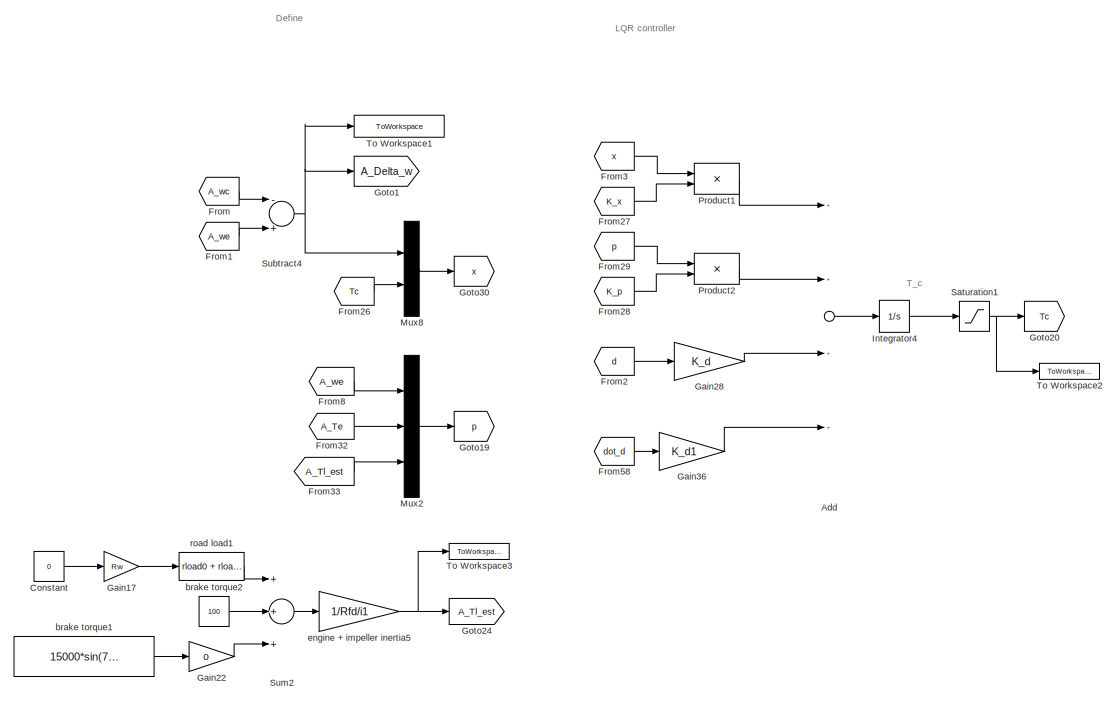
[diagram: root canvas - part 1/5, top left region]
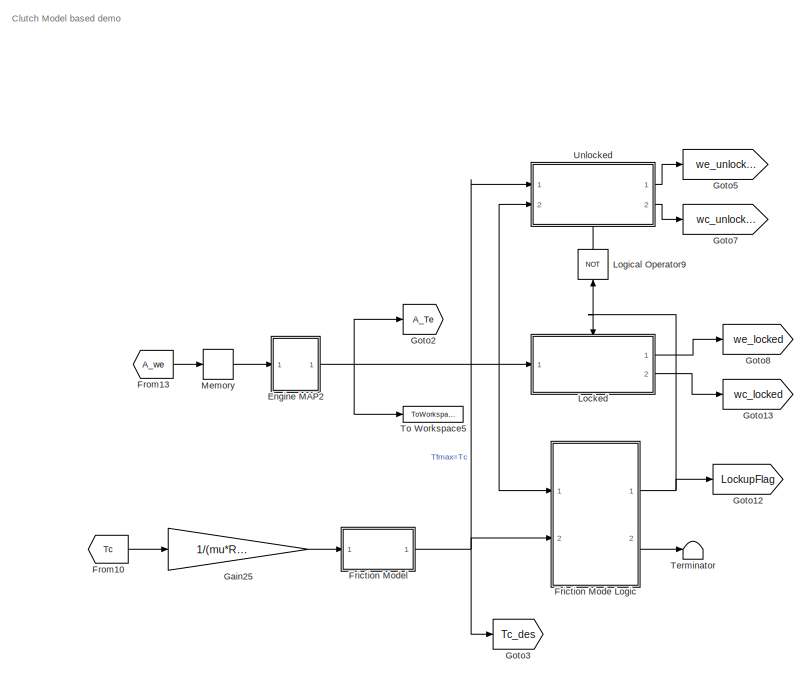
[diagram: root canvas - part 2/5, top center region]
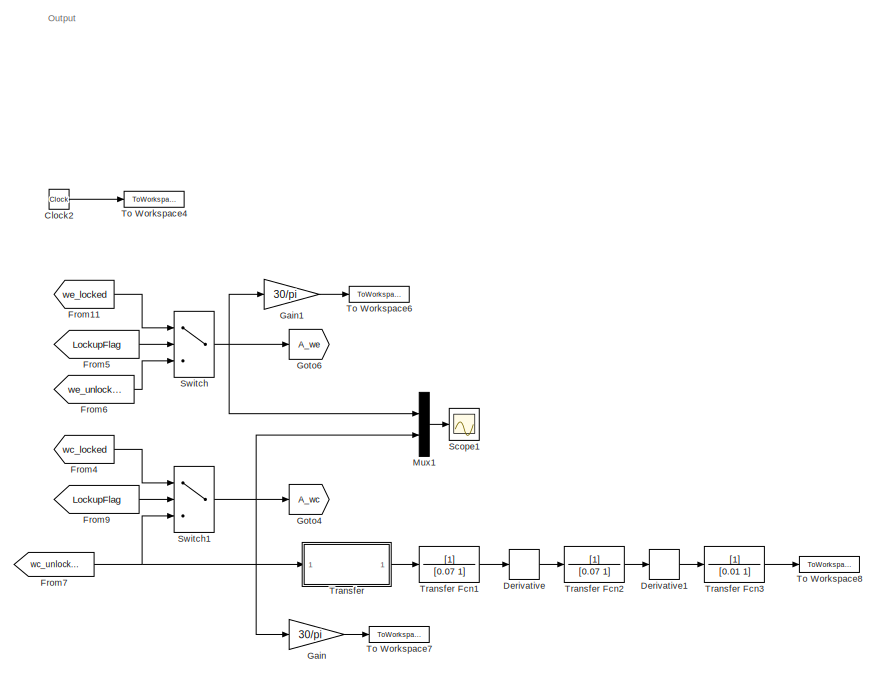
[diagram: root canvas - part 3/5, top right region]
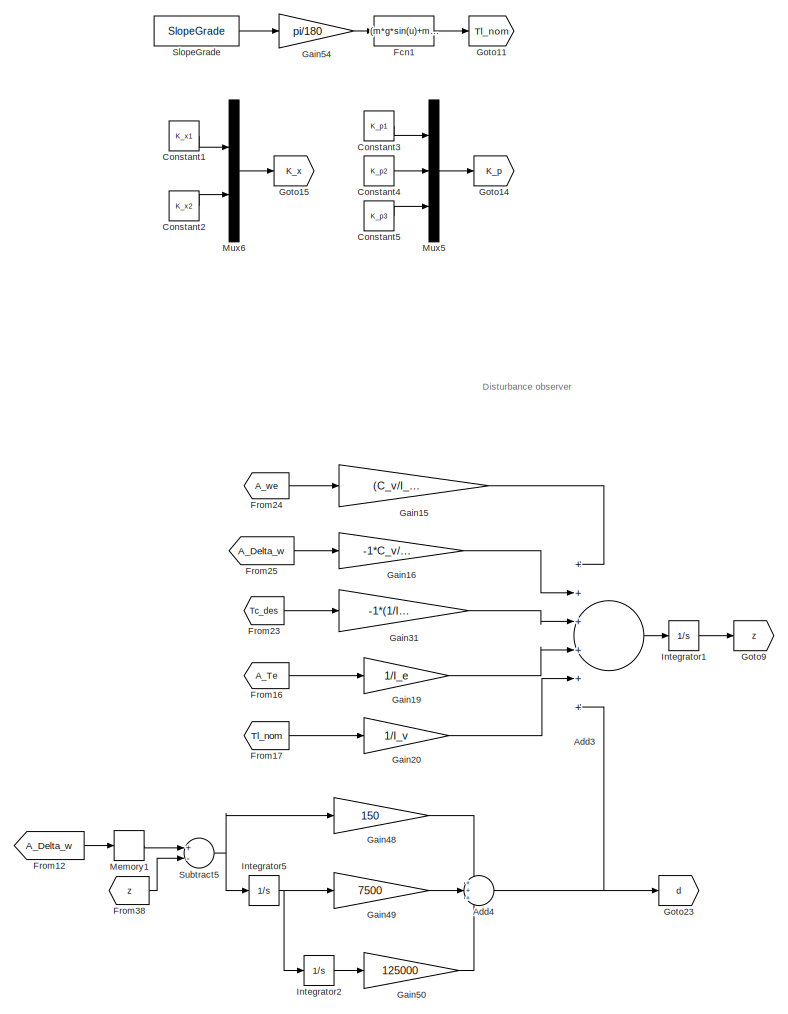
[diagram: root canvas - part 4/5, bottom left region]
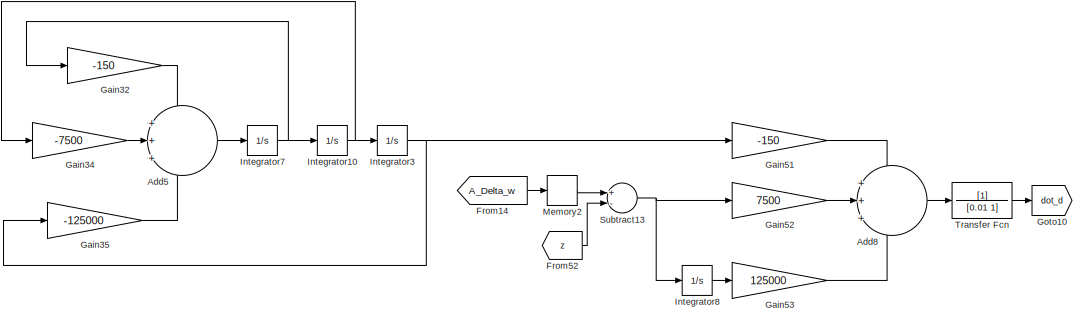
[diagram: root canvas - part 5/5, bottom center region]
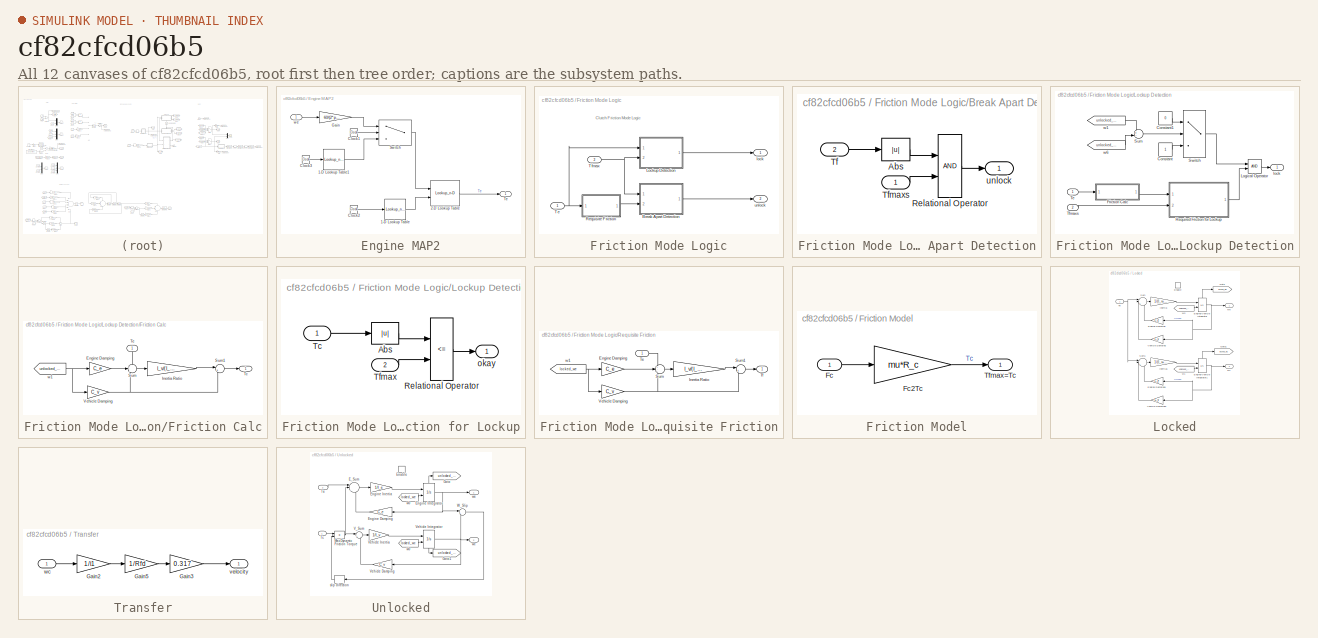
[diagram: thumbnail index - all 12 canvases of the model, root first then tree order]
MODEL slx_cf82cfcd06b5
KIND model
CONFIG AbsTol = auto
CONFIG FixedStep = auto
CONFIG MaxStep = auto
CONFIG MinStep = auto
CONFIG PreLoadFcn = %% parameters of model\nSlopeGrade = 0   % SlopeGrade deg\n\n%%%%%%%%%%%%%%%%%%%%%%%%%%%%%%%%%%%%%%%%%%%%%%%%%%%%%%%%%%%%%%%%%%% Engine\nI_e=0.16;   % moment of crank [kgm2]\nC_e=0.06;   % damping coefficient at the engine [Nm/(rad/s)]\n\n%%%%%%%%%%%%%%%%%%%%%%%%%%%%%%%%%%%%%%%%%%%%%%%%%%%%%%%%%%%%%%%%%%% Clutch\nmu = 0.4;\nD = 0.22;       % diameter on clutch friction plate \nR_c = D/2;\n\n%%%%%%%%%%%%%%%%%%...<+662ch>
CONFIG RelTol = 1e-3
CONFIG SampleTimeConstraint = Unconstrained
CONFIG Solver = ode45
CONFIG SolverMode = Auto
CONFIG SolverName = ode45
CONFIG StartTime = 0.0
CONFIG StopTime = 3
BLOCK [Sum] Add
  InputSameDT = off
  Inputs = ++++
  OutDataTypeStr = Inherit: Inherit via internal rule
  Ports = [4, 1]
  SaturateOnIntegerOverflow = off
BLOCK [Sum] Add3
  IconShape = round
  InputSameDT = off
  Inputs = ++++++
  OutDataTypeStr = Inherit: Inherit via internal rule
  Ports = [6, 1]
  SaturateOnIntegerOverflow = off
BLOCK [Sum] Add4
  IconShape = round
  InputSameDT = off
  Inputs = +++
  OutDataTypeStr = Inherit: Inherit via internal rule
  Ports = [3, 1]
  SaturateOnIntegerOverflow = off
BLOCK [Sum] Add5
  IconShape = round
  InputSameDT = off
  Inputs = +++
  OutDataTypeStr = Inherit: Inherit via internal rule
  Ports = [3, 1]
  SaturateOnIntegerOverflow = off
BLOCK [Sum] Add8
  IconShape = round
  InputSameDT = off
  Inputs = +++
  OutDataTypeStr = Inherit: Inherit via internal rule
  Ports = [3, 1]
  SaturateOnIntegerOverflow = off
BLOCK [Clock] Clock2
BLOCK [Constant] Constant
  Value = 0
BLOCK [Constant] Constant1
  Value = K_x1
BLOCK [Constant] Constant2
  Value = K_x2
BLOCK [Constant] Constant3
  Value = K_p1
BLOCK [Constant] Constant4
  Value = K_p2
BLOCK [Constant] Constant5
  Value = K_p3
BLOCK [Derivative] Derivative
BLOCK [Derivative] Derivative1
BLOCK [SubSystem] Engine MAP2
  Ports = [1, 1]
  RequestExecContextInheritance = off
  Variant = off
BLOCK [Lookup_n-D] Engine MAP2/1-D Lookup Table
  BreakpointsForDimension1 = [0 10]
  InternalRulePriority = Speed
  NumberOfTableDimensions = 1
  Ports = [1, 1]
  RndMeth = Simplest
  Table = [0.2 0.5]
BLOCK [Lookup_n-D] Engine MAP2/1-D Lookup Table1
  BreakpointsForDimension1 = [0 0.001 ]
  InternalRulePriority = Speed
  NumberOfTableDimensions = 1
  Ports = [1, 1]
  RndMeth = Simplest
  Table = [800 800 ]
BLOCK [Lookup_n-D] Engine MAP2/2-D Lookup Table
  BreakpointsForDimension1 = [0;500;1000;2000;3000;4000;5000;6000;6500]
  BreakpointsForDimension2 = [0 0.2 0.3 0.4 0.6 0.8 1]
  InternalRulePriority = Speed
  Ports = [2, 1]
  RndMeth = Simplest
  Table = [0 0 0 0 0	0 0;0 85 95 102 103 107.5 110;0 80 100 110 112.5 113.5 115;0 55 105 120 125 127.5 130;0 35	90 118.5 126 135 137.5;0 24.5 80 122.5 137.5 150 155;0 26 72.5 110 127.5 137.5 140;0 11.5 50 87.5 112.5 125 127.5;0 0 37.5 77.5 110 117.5 117.5]
BLOCK [Clock] Engine MAP2/Clock1
BLOCK [Clock] Engine MAP2/Clock2
BLOCK [Clock] Engine MAP2/Clock3
BLOCK [Gain] Engine MAP2/Gain
  Gain = 60/(2*pi)
  OutDataTypeStr = Inherit: Inherit via internal rule
  ParamDataTypeStr = Inherit: Inherit via internal rule
  SaturateOnIntegerOverflow = off
BLOCK [Switch] Engine MAP2/Switch
  Criteria = u2 > Threshold
  InputSameDT = off
  SaturateOnIntegerOverflow = off
  Threshold = 0.001
BLOCK [Outport] Engine MAP2/Te
  IconDisplay = Port number
BLOCK [Inport] Engine MAP2/we 
  IconDisplay = Port number
BLOCK [Fcn] Fcn1
  Expr = (m*g*sin(u)+mu_r*m*g*cos(u))*Rw/(Rfd*i1)
BLOCK [SubSystem] Friction Mode Logic
  Ports = [2, 2]
  RequestExecContextInheritance = off
  Variant = off
BLOCK [SubSystem] Friction Mode Logic/Break Apart Detection
  Ports = [2, 1]
  RequestExecContextInheritance = off
  Variant = off
BLOCK [Abs] Friction Mode Logic/Break Apart Detection/Abs
BLOCK [RelationalOperator] Friction Mode Logic/Break Apart Detection/Relational Operator
  OutDataTypeStr = boolean
  Ports = [2, 1]
BLOCK [Inport] Friction Mode Logic/Break Apart Detection/Tf
  IconDisplay = Port number
  Port = 2
BLOCK [Inport] Friction Mode Logic/Break Apart Detection/Tfmaxs
  IconDisplay = Port number
BLOCK [Outport] Friction Mode Logic/Break Apart Detection/unlock
  IconDisplay = Port number
  InitialOutput = 0
BLOCK [SubSystem] Friction Mode Logic/Lockup Detection
  Ports = [2, 1]
  RequestExecContextInheritance = off
  Variant = off
BLOCK [Constant] Friction Mode Logic/Lockup Detection/Constant
BLOCK [Constant] Friction Mode Logic/Lockup Detection/Constant1
  Value = 0
BLOCK [SubSystem] Friction Mode Logic/Lockup Detection/Friction Calc
  Ports = [1, 1]
  RequestExecContextInheritance = off
  Variant = off
BLOCK [Gain] Friction Mode Logic/Lockup Detection/Friction Calc/Engine Damping
  Gain = C_e
BLOCK [Gain] Friction Mode Logic/Lockup Detection/Friction Calc/Inertia Ratio
  Gain = I_v/(I_v+I_e)
BLOCK [Sum] Friction Mode Logic/Lockup Detection/Friction Calc/Sum
  IconShape = round
  Inputs = +--
  Ports = [3, 1]
BLOCK [Sum] Friction Mode Logic/Lockup Detection/Friction Calc/Sum1
  IconShape = round
  Inputs = |++
  Ports = [2, 1]
BLOCK [Outport] Friction Mode Logic/Lockup Detection/Friction Calc/Tc
  IconDisplay = Port number
  InitialOutput = 0
BLOCK [Inport] Friction Mode Logic/Lockup Detection/Friction Calc/Te
  IconDisplay = Port number
BLOCK [Gain] Friction Mode Logic/Lockup Detection/Friction Calc/Vehicle Damping
  Gain = C_v
BLOCK [From] Friction Mode Logic/Lockup Detection/Friction Calc/w1
  GotoTag = unlocked_we
  TagVisibility = global
BLOCK [Logic] Friction Mode Logic/Lockup Detection/Logical Operator
  AllPortsSameDT = off
  OutDataTypeStr = boolean
  Ports = [2, 1]
BLOCK [SubSystem] Friction Mode Logic/Lockup Detection/Required Friction for Lockup
  Ports = [2, 1]
  RequestExecContextInheritance = off
  Variant = off
BLOCK [Abs] Friction Mode Logic/Lockup Detection/Required Friction for Lockup/Abs
BLOCK [RelationalOperator] Friction Mode Logic/Lockup Detection/Required Friction for Lockup/Relational Operator
  Operator = <=
  OutDataTypeStr = boolean
  Ports = [2, 1]
BLOCK [Inport] Friction Mode Logic/Lockup Detection/Required Friction for Lockup/Tc
  IconDisplay = Port number
BLOCK [Inport] Friction Mode Logic/Lockup Detection/Required Friction for Lockup/Tfmax
  IconDisplay = Port number
  Port = 2
BLOCK [Outport] Friction Mode Logic/Lockup Detection/Required Friction for Lockup/okay
  IconDisplay = Port number
  InitialOutput = 0
BLOCK [Sum] Friction Mode Logic/Lockup Detection/Sum
  IconShape = round
  Inputs = +-
  Ports = [2, 1]
BLOCK [Switch] Friction Mode Logic/Lockup Detection/Switch
  Criteria = u2 ~= 0
  InputSameDT = off
  SaturateOnIntegerOverflow = off
BLOCK [Inport] Friction Mode Logic/Lockup Detection/Te
  IconDisplay = Port number
BLOCK [Inport] Friction Mode Logic/Lockup Detection/Tfmaxs
  IconDisplay = Port number
  Port = 2
BLOCK [Outport] Friction Mode Logic/Lockup Detection/lock
  IconDisplay = Port number
  InitialOutput = 0
BLOCK [From] Friction Mode Logic/Lockup Detection/w1
  GotoTag = unlocked_we
  TagVisibility = global
BLOCK [From] Friction Mode Logic/Lockup Detection/w6
  GotoTag = unlocked_wc
  TagVisibility = global
BLOCK [SubSystem] Friction Mode Logic/Requisite Friction
  Ports = [1, 1]
  RequestExecContextInheritance = off
  Variant = off
BLOCK [Gain] Friction Mode Logic/Requisite Friction/Engine Damping
  Gain = C_e
BLOCK [Gain] Friction Mode Logic/Requisite Friction/Inertia Ratio
  Gain = I_v/(I_v+I_e)
BLOCK [Sum] Friction Mode Logic/Requisite Friction/Sum
  IconShape = round
  Inputs = +--
  Ports = [3, 1]
BLOCK [Sum] Friction Mode Logic/Requisite Friction/Sum1
  IconShape = round
  Inputs = |++
  Ports = [2, 1]
BLOCK [Inport] Friction Mode Logic/Requisite Friction/Te
  IconDisplay = Port number
BLOCK [Outport] Friction Mode Logic/Requisite Friction/Tf
  IconDisplay = Port number
  InitialOutput = 0
BLOCK [Gain] Friction Mode Logic/Requisite Friction/Vehicle Damping
  Gain = C_v
BLOCK [From] Friction Mode Logic/Requisite Friction/w1
  GotoTag = locked_we
  TagVisibility = global
BLOCK [Inport] Friction Mode Logic/Te
  IconDisplay = Port number
BLOCK [Inport] Friction Mode Logic/Tfmax
  IconDisplay = Port number
  Port = 2
BLOCK [Outport] Friction Mode Logic/lock
  IconDisplay = Port number
  InitialOutput = 0
BLOCK [Outport] Friction Mode Logic/unlock
  IconDisplay = Port number
  InitialOutput = 0
  Port = 2
BLOCK [SubSystem] Friction Model
  Ports = [1, 1]
  RequestExecContextInheritance = off
  Variant = off
BLOCK [Inport] Friction Model/Fc
  IconDisplay = Port number
BLOCK [Gain] Friction Model/Fc2Tc
  Gain = mu*R_c
  OutDataTypeStr = Inherit: Inherit via internal rule
  ParamDataTypeStr = Inherit: Inherit via internal rule
  SaturateOnIntegerOverflow = off
BLOCK [Outport] Friction Model/Tfmax=Tc
  IconDisplay = Port number
BLOCK [From] From
  GotoTag = A_wc
BLOCK [From] From1
  GotoTag = A_we
BLOCK [From] From10
  GotoTag = Tc
BLOCK [From] From11
  GotoTag = we_locked
BLOCK [From] From12
  GotoTag = A_Delta_w
BLOCK [From] From13
  GotoTag = A_we
BLOCK [From] From14
  GotoTag = A_Delta_w
BLOCK [From] From16
  CloseFcn = tagdialog Close
  GotoTag = A_Te
BLOCK [From] From17
  GotoTag = Tl_nom
BLOCK [From] From2
  GotoTag = d
BLOCK [From] From23
  GotoTag = Tc_des
BLOCK [From] From24
  CloseFcn = tagdialog Close
  GotoTag = A_we
BLOCK [From] From25
  GotoTag = A_Delta_w
BLOCK [From] From26
  GotoTag = Tc
BLOCK [From] From27
  GotoTag = K_x
BLOCK [From] From28
  GotoTag = K_p
BLOCK [From] From29
  GotoTag = p
BLOCK [From] From3
  GotoTag = x
BLOCK [From] From32
  CloseFcn = tagdialog Close
  GotoTag = A_Te
BLOCK [From] From33
  GotoTag = A_Tl_est
BLOCK [From] From38
  GotoTag = z
BLOCK [From] From4
  GotoTag = wc_locked
BLOCK [From] From5
  GotoTag = LockupFlag
BLOCK [From] From52
  GotoTag = z
BLOCK [From] From58
  GotoTag = dot_d
BLOCK [From] From6
  GotoTag = we_unlocked
BLOCK [From] From7
  GotoTag = wc_unlocked
BLOCK [From] From8
  GotoTag = A_we
BLOCK [From] From9
  GotoTag = LockupFlag
BLOCK [Gain] Gain
  Gain = 30/pi
  OutDataTypeStr = Inherit: Inherit via internal rule
  ParamDataTypeStr = Inherit: Inherit via internal rule
  SaturateOnIntegerOverflow = off
BLOCK [Gain] Gain1
  Gain = 30/pi
  OutDataTypeStr = Inherit: Inherit via internal rule
  ParamDataTypeStr = Inherit: Inherit via internal rule
  SaturateOnIntegerOverflow = off
BLOCK [Gain] Gain15
  Gain = (C_v/I_v-C_e/I_e)
  Multiplication = Matrix(K*u)
  OutDataTypeStr = Inherit: Inherit via internal rule
  ParamDataTypeStr = Inherit: Inherit via internal rule
  SaturateOnIntegerOverflow = off
BLOCK [Gain] Gain16
  Gain = -1*C_v/I_v
  Multiplication = Matrix(K*u)
  OutDataTypeStr = Inherit: Inherit via internal rule
  ParamDataTypeStr = Inherit: Inherit via internal rule
  SaturateOnIntegerOverflow = off
BLOCK [Gain] Gain17
  Gain = Rw
  OutDataTypeStr = Inherit: Inherit via internal rule
  ParamDataTypeStr = Inherit: Inherit via internal rule
  SaturateOnIntegerOverflow = off
BLOCK [Gain] Gain19
  Gain = 1/I_e
  Multiplication = Matrix(K*u)
  OutDataTypeStr = Inherit: Inherit via internal rule
  ParamDataTypeStr = Inherit: Inherit via internal rule
  SaturateOnIntegerOverflow = off
BLOCK [Gain] Gain20
  Gain = 1/I_v
  Multiplication = Matrix(K*u)
  OutDataTypeStr = Inherit: Inherit via internal rule
  ParamDataTypeStr = Inherit: Inherit via internal rule
  SaturateOnIntegerOverflow = off
BLOCK [Gain] Gain22
  Gain = 0
  OutDataTypeStr = Inherit: Inherit via internal rule
  ParamDataTypeStr = Inherit: Inherit via internal rule
  SaturateOnIntegerOverflow = off
BLOCK [Gain] Gain25
  Gain = 1/(mu*R_c)
  Multiplication = Matrix(K*u)
  OutDataTypeStr = Inherit: Inherit via internal rule
  ParamDataTypeStr = Inherit: Inherit via internal rule
  SaturateOnIntegerOverflow = off
BLOCK [Gain] Gain28
  Gain = K_d
  Multiplication = Matrix(K*u)
  OutDataTypeStr = Inherit: Inherit via internal rule
  ParamDataTypeStr = Inherit: Inherit via internal rule
  SaturateOnIntegerOverflow = off
BLOCK [Gain] Gain31
  Gain = -1*(1/I_e+1/I_v)
  Multiplication = Matrix(K*u)
  OutDataTypeStr = Inherit: Inherit via internal rule
  ParamDataTypeStr = Inherit: Inherit via internal rule
  SaturateOnIntegerOverflow = off
BLOCK [Gain] Gain32
  Gain = -150
  Multiplication = Matrix(K*u)
  OutDataTypeStr = Inherit: Inherit via internal rule
  ParamDataTypeStr = Inherit: Inherit via internal rule
  SaturateOnIntegerOverflow = off
BLOCK [Gain] Gain34
  Gain = -7500
  Multiplication = Matrix(K*u)
  OutDataTypeStr = Inherit: Inherit via internal rule
  ParamDataTypeStr = Inherit: Inherit via internal rule
  SaturateOnIntegerOverflow = off
BLOCK [Gain] Gain35
  Gain = -125000
  Multiplication = Matrix(K*u)
  OutDataTypeStr = Inherit: Inherit via internal rule
  ParamDataTypeStr = Inherit: Inherit via internal rule
  SaturateOnIntegerOverflow = off
BLOCK [Gain] Gain36
  Gain = K_d1
  Multiplication = Matrix(K*u)
  OutDataTypeStr = Inherit: Inherit via internal rule
  ParamDataTypeStr = Inherit: Inherit via internal rule
  SaturateOnIntegerOverflow = off
BLOCK [Gain] Gain48
  Gain = 150
  Multiplication = Matrix(K*u)
  OutDataTypeStr = Inherit: Inherit via internal rule
  ParamDataTypeStr = Inherit: Inherit via internal rule
  SaturateOnIntegerOverflow = off
BLOCK [Gain] Gain49
  Gain = 7500
  Multiplication = Matrix(K*u)
  OutDataTypeStr = Inherit: Inherit via internal rule
  ParamDataTypeStr = Inherit: Inherit via internal rule
  SaturateOnIntegerOverflow = off
BLOCK [Gain] Gain50
  Gain = 125000
  Multiplication = Matrix(K*u)
  OutDataTypeStr = Inherit: Inherit via internal rule
  ParamDataTypeStr = Inherit: Inherit via internal rule
  SaturateOnIntegerOverflow = off
BLOCK [Gain] Gain51
  Gain = -150
  Multiplication = Matrix(K*u)
  OutDataTypeStr = Inherit: Inherit via internal rule
  ParamDataTypeStr = Inherit: Inherit via internal rule
  SaturateOnIntegerOverflow = off
BLOCK [Gain] Gain52
  Gain = 7500
  Multiplication = Matrix(K*u)
  OutDataTypeStr = Inherit: Inherit via internal rule
  ParamDataTypeStr = Inherit: Inherit via internal rule
  SaturateOnIntegerOverflow = off
BLOCK [Gain] Gain53
  Gain = 125000
  Multiplication = Matrix(K*u)
  OutDataTypeStr = Inherit: Inherit via internal rule
  ParamDataTypeStr = Inherit: Inherit via internal rule
  SaturateOnIntegerOverflow = off
BLOCK [Gain] Gain54
  Gain = pi/180
  Multiplication = Matrix(K*u)
  OutDataTypeStr = Inherit: Inherit via internal rule
  ParamDataTypeStr = Inherit: Inherit via internal rule
  SaturateOnIntegerOverflow = off
BLOCK [Goto] Goto1
  GotoTag = A_Delta_w
BLOCK [Goto] Goto10
  GotoTag = dot_d
BLOCK [Goto] Goto11
  GotoTag = Tl_nom
BLOCK [Goto] Goto12
  GotoTag = LockupFlag
BLOCK [Goto] Goto13
  GotoTag = wc_locked
BLOCK [Goto] Goto14
  GotoTag = K_p
BLOCK [Goto] Goto15
  GotoTag = K_x
BLOCK [Goto] Goto19
  GotoTag = p
BLOCK [Goto] Goto2
  GotoTag = A_Te
BLOCK [Goto] Goto20
  GotoTag = Tc
BLOCK [Goto] Goto23
  GotoTag = d
BLOCK [Goto] Goto24
  GotoTag = A_Tl_est
BLOCK [Goto] Goto3
  GotoTag = Tc_des
BLOCK [Goto] Goto30
  GotoTag = x
BLOCK [Goto] Goto4
  GotoTag = A_wc
BLOCK [Goto] Goto5
  GotoTag = we_unlocked
BLOCK [Goto] Goto6
  GotoTag = A_we
BLOCK [Goto] Goto7
  GotoTag = wc_unlocked
BLOCK [Goto] Goto8
  GotoTag = we_locked
BLOCK [Goto] Goto9
  GotoTag = z
BLOCK [Integrator] Integrator1
  InitialCondition = 83.78
  Ports = [1, 1]
BLOCK [Integrator] Integrator10
  Ports = [1, 1]
BLOCK [Integrator] Integrator2
  Ports = [1, 1]
BLOCK [Integrator] Integrator3
  Ports = [1, 1]
BLOCK [Integrator] Integrator4
  LimitOutput = on
  LowerSaturationLimit = 0
  Ports = [1, 1]
BLOCK [Integrator] Integrator5
  Ports = [1, 1]
BLOCK [Integrator] Integrator7
  Ports = [1, 1]
BLOCK [Integrator] Integrator8
  Ports = [1, 1]
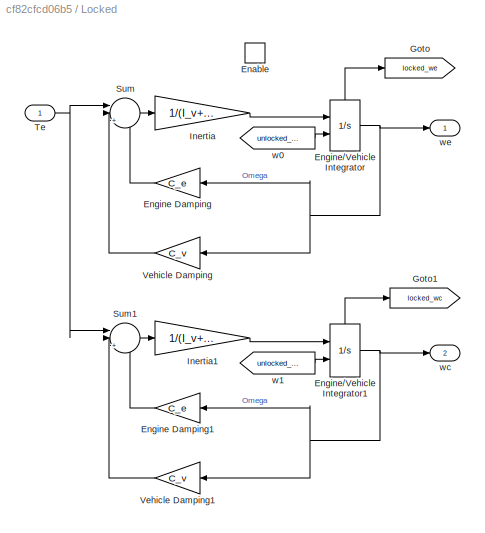
BLOCK [SubSystem] Locked
  Ports = [1, 2, 1]
  RequestExecContextInheritance = off
  TreatAsAtomicUnit = on
  Variant = off
BLOCK [EnablePort] Locked/Enable
  Ports = []
  StatesWhenEnabling = reset
BLOCK [Gain] Locked/Engine Damping
  Gain = C_e
BLOCK [Gain] Locked/Engine Damping1
  Gain = C_e
BLOCK [Integrator] Locked/Engine//Vehicle Integrator
  InitialCondition = 80
  InitialConditionSource = external
  Ports = [2, 1, 0, 0, 1]
  ShowStatePort = on
BLOCK [Integrator] Locked/Engine//Vehicle Integrator1
  InitialConditionSource = external
  Ports = [2, 1, 0, 0, 1]
  ShowStatePort = on
BLOCK [Goto] Locked/Goto
  GotoTag = locked_we
  TagVisibility = global
BLOCK [Goto] Locked/Goto1
  GotoTag = locked_wc
  TagVisibility = global
BLOCK [Gain] Locked/Inertia
  Gain = 1/(I_v+I_e)
BLOCK [Gain] Locked/Inertia1
  Gain = 1/(I_v+I_e)
BLOCK [Sum] Locked/Sum
  IconShape = round
  Inputs = ||+--
  Ports = [3, 1]
BLOCK [Sum] Locked/Sum1
  IconShape = round
  Inputs = ||+--
  Ports = [3, 1]
BLOCK [Inport] Locked/Te
  IconDisplay = Port number
BLOCK [Gain] Locked/Vehicle Damping
  Gain = C_v
BLOCK [Gain] Locked/Vehicle Damping1
  Gain = C_v
BLOCK [From] Locked/w0
  GotoTag = unlocked_we
  TagVisibility = global
BLOCK [From] Locked/w1
  GotoTag = unlocked_wc
  TagVisibility = global
BLOCK [Outport] Locked/wc
  IconDisplay = Port number
  InitialOutput = 0
  Port = 2
BLOCK [Outport] Locked/we
  IconDisplay = Port number
  InitialOutput = 0
BLOCK [Logic] Logical Operator9
  IconShape = distinctive
  Inputs = 1
  Operator = NOT
  OutDataTypeStr = boolean
  Ports = [1, 1]
BLOCK [Memory] Memory
BLOCK [Memory] Memory1
BLOCK [Memory] Memory2
BLOCK [Mux] Mux1
  DisplayOption = bar
  Inputs = 2
  Ports = [2, 1]
BLOCK [Mux] Mux2
  DisplayOption = bar
  Inputs = 3
  Ports = [3, 1]
BLOCK [Mux] Mux5
  DisplayOption = bar
  Inputs = 3
  Ports = [3, 1]
BLOCK [Mux] Mux6
  DisplayOption = bar
  Inputs = 2
  Ports = [2, 1]
BLOCK [Mux] Mux8
  DisplayOption = bar
  Inputs = 2
  Ports = [2, 1]
BLOCK [Product] Product1
  InputSameDT = off
  Multiplication = Matrix(*)
  OutDataTypeStr = Inherit: Inherit via internal rule
  Ports = [2, 1]
  RndMeth = Floor
  SaturateOnIntegerOverflow = off
BLOCK [Product] Product2
  InputSameDT = off
  Multiplication = Matrix(*)
  OutDataTypeStr = Inherit: Inherit via internal rule
  Ports = [2, 1]
  RndMeth = Floor
  SaturateOnIntegerOverflow = off
BLOCK [Saturate] Saturation1
  InputPortMap = u0
  LowerLimit = 0
  Ports = [1, 1]
  UpperLimit = 188
BLOCK [Scope] Scope1
  Ports = [1]
  ScopeSpecificationString = C++SS(StrPVP('Location','[11, 378, 335, 617]'),StrPVP('Open','off'),MxPVP('AxesTitles',24,'struct(''axes1'',''%<SignalLabel>'')'),MxPVP('ScopeGraphics',28,'struct(''FigureColor'',''[0.5 0.5 0.5]'',''AxesColor'',''[0 0 0]'',''AxesTickColor'',''[1 1 1]'',''LineColors'',''[1 1 0;1 0 1;0 1 1;1 0 0;0 1 0;0 0 1]'',''LineStyles'',''-|-|-|-|-|-'',''LineWidths'',''[0.5 0.5 0.5 0.5 0.5 0.5]'',''MarkerStyles...<+281ch>
BLOCK [Constant] SlopeGrade
  Value = SlopeGrade
BLOCK [Sum] Subtract13
  InputSameDT = off
  Inputs = +-
  OutDataTypeStr = Inherit: Inherit via internal rule
  Ports = [2, 1]
  SaturateOnIntegerOverflow = off
BLOCK [Sum] Subtract4
  InputSameDT = off
  Inputs = -+
  OutDataTypeStr = Inherit: Inherit via internal rule
  Ports = [2, 1]
  SaturateOnIntegerOverflow = off
BLOCK [Sum] Subtract5
  InputSameDT = off
  Inputs = +-
  OutDataTypeStr = Inherit: Inherit via internal rule
  Ports = [2, 1]
  SaturateOnIntegerOverflow = off
BLOCK [Sum] Sum2
  Inputs = +++
  Ports = [3, 1]
BLOCK [Switch] Switch
  Criteria = u2 > Threshold
  InputSameDT = off
  SaturateOnIntegerOverflow = off
BLOCK [Switch] Switch1
  Criteria = u2 > Threshold
  InputSameDT = off
  SaturateOnIntegerOverflow = off
BLOCK [Terminator] Terminator
BLOCK [ToWorkspace] To Workspace1
  MaxDataPoints = inf
  Ports = [1]
  SampleTime = -1
  SaveFormat = Structure With Time
  VariableName = B_Delta_omega
BLOCK [ToWorkspace] To Workspace2
  MaxDataPoints = inf
  Ports = [1]
  SampleTime = -1
  Save2DSignal = 2-D array (concatenate along first dimension)
  VariableName = output_Fc
BLOCK [ToWorkspace] To Workspace3
  MaxDataPoints = inf
  Ports = [1]
  SampleTime = -1
  SaveFormat = Structure With Time
  VariableName = Tl_est
BLOCK [ToWorkspace] To Workspace4
  MaxDataPoints = inf
  Ports = [1]
  SampleTime = -1
  VariableName = output_t
BLOCK [ToWorkspace] To Workspace5
  MaxDataPoints = inf
  Ports = [1]
  SampleTime = -1
  Save2DSignal = 2-D array (concatenate along first dimension)
  VariableName = output_Te
BLOCK [ToWorkspace] To Workspace6
  MaxDataPoints = inf
  Ports = [1]
  SampleTime = -1
  Save2DSignal = 2-D array (concatenate along first dimension)
  VariableName = output_we
BLOCK [ToWorkspace] To Workspace7
  MaxDataPoints = inf
  Ports = [1]
  SampleTime = -1
  Save2DSignal = 2-D array (concatenate along first dimension)
  VariableName = output_wc
BLOCK [ToWorkspace] To Workspace8
  MaxDataPoints = inf
  Ports = [1]
  SampleTime = -1
  Save2DSignal = 2-D array (concatenate along first dimension)
  VariableName = output_da
BLOCK [SubSystem] Transfer
  Ports = [1, 1]
  RequestExecContextInheritance = off
  Variant = off
BLOCK [TransferFcn] Transfer Fcn
  Denominator = [0.01 1]
BLOCK [TransferFcn] Transfer Fcn1
  Denominator = [0.07 1]
BLOCK [TransferFcn] Transfer Fcn2
  Denominator = [0.07 1]
BLOCK [TransferFcn] Transfer Fcn3
  Denominator = [0.01 1]
BLOCK [Gain] Transfer/Gain2
  Gain = 1/i1
  OutDataTypeStr = Inherit: Inherit via internal rule
  ParamDataTypeStr = Inherit: Inherit via internal rule
  SaturateOnIntegerOverflow = off
BLOCK [Gain] Transfer/Gain3
  Gain = 0.317
  OutDataTypeStr = Inherit: Inherit via internal rule
  ParamDataTypeStr = Inherit: Inherit via internal rule
  SaturateOnIntegerOverflow = off
BLOCK [Gain] Transfer/Gain5
  Gain = 1/Rfd
  OutDataTypeStr = Inherit: Inherit via internal rule
  ParamDataTypeStr = Inherit: Inherit via internal rule
  SaturateOnIntegerOverflow = off
BLOCK [Outport] Transfer/velocity
  IconDisplay = Port number
BLOCK [Inport] Transfer/wc
  IconDisplay = Port number
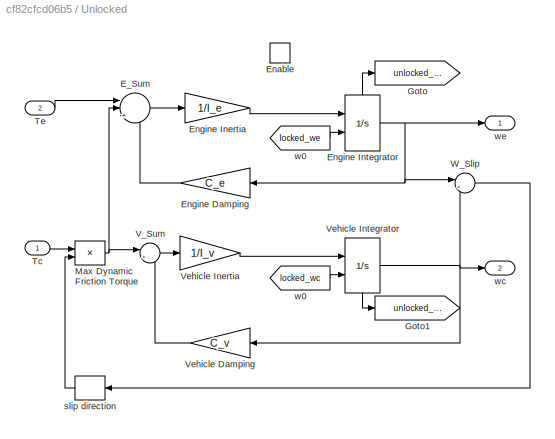
BLOCK [SubSystem] Unlocked
  Ports = [2, 2, 1]
  RequestExecContextInheritance = off
  TreatAsAtomicUnit = on
  Variant = off
BLOCK [Sum] Unlocked/E_Sum
  IconShape = round
  Inputs = ||+--
  Ports = [3, 1]
BLOCK [EnablePort] Unlocked/Enable
  Ports = []
  StatesWhenEnabling = reset
BLOCK [Gain] Unlocked/Engine Damping
  Gain = C_e
BLOCK [Gain] Unlocked/Engine Inertia
  Gain = 1/I_e
BLOCK [Integrator] Unlocked/Engine Integrator
  ExternalReset = rising
  InitialCondition = 80
  Ports = [2, 1, 0, 0, 1]
  ShowStatePort = on
BLOCK [Goto] Unlocked/Goto
  GotoTag = unlocked_we
  TagVisibility = global
BLOCK [Goto] Unlocked/Goto1
  GotoTag = unlocked_wc
  TagVisibility = global
BLOCK [Product] Unlocked/Max Dynamic Friction Torque
  Ports = [2, 1]
BLOCK [Inport] Unlocked/Tc
  IconDisplay = Port number
BLOCK [Inport] Unlocked/Te
  IconDisplay = Port number
  Port = 2
BLOCK [Sum] Unlocked/V_Sum
  IconShape = round
  Inputs = |+-
  Ports = [2, 1]
BLOCK [Gain] Unlocked/Vehicle Damping
  Gain = C_v
BLOCK [Gain] Unlocked/Vehicle Inertia
  Gain = 1/I_v
BLOCK [Integrator] Unlocked/Vehicle Integrator
  InitialConditionSource = external
  Ports = [2, 1, 0, 0, 1]
  ShowStatePort = on
BLOCK [Sum] Unlocked/W_Slip
  IconShape = round
  Inputs = |+-
  Ports = [2, 1]
BLOCK [Signum] Unlocked/slip direction
BLOCK [From] Unlocked/w0
  GotoTag = locked_wc
  TagVisibility = global
BLOCK [From] Unlocked/w0 
  GotoTag = locked_we
  TagVisibility = global
BLOCK [Outport] Unlocked/wc
  IconDisplay = Port number
  InitialOutput = 0
  Port = 2
BLOCK [Outport] Unlocked/we
  IconDisplay = Port number
  InitialOutput = 0
BLOCK [Constant] brake torque1
  Value = 15000*sin(7*pi/180)
BLOCK [Constant] brake torque2
  Value = 100
BLOCK [Gain] engine + impeller inertia5
  Gain = 1/Rfd/i1
BLOCK [Fcn] road load1
  Expr = rload0 + rload2*u^2*Rw
ANNOTATION (root): T_c
ANNOTATION (root): Clutch Model based demo
ANNOTATION (root): Disturbance observer
ANNOTATION (root): Output
ANNOTATION (root): Define
ANNOTATION (root): LQR controller
ANNOTATION Friction Mode Logic: Clutch Friction Mode Logic
LINE Add3:1 -> Integrator1:1
NET Add4:1 -> Add3:6, Goto23:1
LINE Add5:1 -> Integrator7:1
LINE Add8:1 -> Transfer Fcn:1
LINE Add:1 -> Integrator4:1
LINE Clock2:1 -> To Workspace4:1
LINE Constant1:1 -> Mux6:1
LINE Constant2:1 -> Mux6:2
LINE Constant3:1 -> Mux5:1
LINE Constant4:1 -> Mux5:2
LINE Constant5:1 -> Mux5:3
LINE Constant:1 -> Gain17:1
LINE Derivative1:1 -> Transfer Fcn3:1
LINE Derivative:1 -> Transfer Fcn2:1
LINE Engine MAP2/1-D Lookup Table1:1 -> Engine MAP2/Switch:3
LINE Engine MAP2/1-D Lookup Table:1 -> Engine MAP2/2-D Lookup Table:2
LINE Engine MAP2/2-D Lookup Table:1 -> Engine MAP2/Te:1
LINE Engine MAP2/Clock1:1 -> Engine MAP2/Switch:2
LINE Engine MAP2/Clock2:1 -> Engine MAP2/1-D Lookup Table:1
LINE Engine MAP2/Clock3:1 -> Engine MAP2/1-D Lookup Table1:1
LINE Engine MAP2/Gain:1 -> Engine MAP2/Switch:1
LINE Engine MAP2/Switch:1 -> Engine MAP2/2-D Lookup Table:1
LINE Engine MAP2/we :1 -> Engine MAP2/Gain:1
NET Engine MAP2:1 -> Friction Mode Logic:1, Goto2:1, Locked:1, To Workspace5:1, Unlocked:2
LINE Fcn1:1 -> Goto11:1
LINE Friction Mode Logic/Break Apart Detection/Abs:1 -> Friction Mode Logic/Break Apart Detection/Relational Operator:1
LINE Friction Mode Logic/Break Apart Detection/Relational Operator:1 -> Friction Mode Logic/Break Apart Detection/unlock:1
LINE Friction Mode Logic/Break Apart Detection/Tf:1 -> Friction Mode Logic/Break Apart Detection/Abs:1
LINE Friction Mode Logic/Break Apart Detection/Tfmaxs:1 -> Friction Mode Logic/Break Apart Detection/Relational Operator:2
LINE Friction Mode Logic/Break Apart Detection:1 -> Friction Mode Logic/unlock:1
LINE Friction Mode Logic/Lockup Detection/Constant1:1 -> Friction Mode Logic/Lockup Detection/Switch:1
LINE Friction Mode Logic/Lockup Detection/Constant:1 -> Friction Mode Logic/Lockup Detection/Switch:3
LINE Friction Mode Logic/Lockup Detection/Friction Calc/Engine Damping:1 -> Friction Mode Logic/Lockup Detection/Friction Calc/Sum:2
LINE Friction Mode Logic/Lockup Detection/Friction Calc/Inertia Ratio:1 -> Friction Mode Logic/Lockup Detection/Friction Calc/Sum1:1
LINE Friction Mode Logic/Lockup Detection/Friction Calc/Sum1:1 -> Friction Mode Logic/Lockup Detection/Friction Calc/Tc:1
LINE Friction Mode Logic/Lockup Detection/Friction Calc/Sum:1 -> Friction Mode Logic/Lockup Detection/Friction Calc/Inertia Ratio:1
LINE Friction Mode Logic/Lockup Detection/Friction Calc/Te:1 -> Friction Mode Logic/Lockup Detection/Friction Calc/Sum:1
NET Friction Mode Logic/Lockup Detection/Friction Calc/Vehicle Damping:1 -> Friction Mode Logic/Lockup Detection/Friction Calc/Sum1:2, Friction Mode Logic/Lockup Detection/Friction Calc/Sum:3
NET Friction Mode Logic/Lockup Detection/Friction Calc/w1:1 -> Friction Mode Logic/Lockup Detection/Friction Calc/Engine Damping:1, Friction Mode Logic/Lockup Detection/Friction Calc/Vehicle Damping:1
LINE Friction Mode Logic/Lockup Detection/Friction Calc:1 -> Friction Mode Logic/Lockup Detection/Required Friction for Lockup:1
LINE Friction Mode Logic/Lockup Detection/Logical Operator:1 -> Friction Mode Logic/Lockup Detection/lock:1
LINE Friction Mode Logic/Lockup Detection/Required Friction for Lockup/Abs:1 -> Friction Mode Logic/Lockup Detection/Required Friction for Lockup/Relational Operator:1
LINE Friction Mode Logic/Lockup Detection/Required Friction for Lockup/Relational Operator:1 -> Friction Mode Logic/Lockup Detection/Required Friction for Lockup/okay:1
LINE Friction Mode Logic/Lockup Detection/Required Friction for Lockup/Tc:1 -> Friction Mode Logic/Lockup Detection/Required Friction for Lockup/Abs:1
LINE Friction Mode Logic/Lockup Detection/Required Friction for Lockup/Tfmax:1 -> Friction Mode Logic/Lockup Detection/Required Friction for Lockup/Relational Operator:2
LINE Friction Mode Logic/Lockup Detection/Required Friction for Lockup:1 -> Friction Mode Logic/Lockup Detection/Logical Operator:2
LINE Friction Mode Logic/Lockup Detection/Sum:1 -> Friction Mode Logic/Lockup Detection/Switch:2
LINE Friction Mode Logic/Lockup Detection/Switch:1 -> Friction Mode Logic/Lockup Detection/Logical Operator:1
LINE Friction Mode Logic/Lockup Detection/Te:1 -> Friction Mode Logic/Lockup Detection/Friction Calc:1
LINE Friction Mode Logic/Lockup Detection/Tfmaxs:1 -> Friction Mode Logic/Lockup Detection/Required Friction for Lockup:2
LINE Friction Mode Logic/Lockup Detection/w1:1 -> Friction Mode Logic/Lockup Detection/Sum:1
LINE Friction Mode Logic/Lockup Detection/w6:1 -> Friction Mode Logic/Lockup Detection/Sum:2
LINE Friction Mode Logic/Lockup Detection:1 -> Friction Mode Logic/lock:1
LINE Friction Mode Logic/Requisite Friction/Engine Damping:1 -> Friction Mode Logic/Requisite Friction/Sum:2
LINE Friction Mode Logic/Requisite Friction/Inertia Ratio:1 -> Friction Mode Logic/Requisite Friction/Sum1:1
LINE Friction Mode Logic/Requisite Friction/Sum1:1 -> Friction Mode Logic/Requisite Friction/Tf:1
LINE Friction Mode Logic/Requisite Friction/Sum:1 -> Friction Mode Logic/Requisite Friction/Inertia Ratio:1
LINE Friction Mode Logic/Requisite Friction/Te:1 -> Friction Mode Logic/Requisite Friction/Sum:1
NET Friction Mode Logic/Requisite Friction/Vehicle Damping:1 -> Friction Mode Logic/Requisite Friction/Sum1:2, Friction Mode Logic/Requisite Friction/Sum:3
NET Friction Mode Logic/Requisite Friction/w1:1 -> Friction Mode Logic/Requisite Friction/Engine Damping:1, Friction Mode Logic/Requisite Friction/Vehicle Damping:1
LINE Friction Mode Logic/Requisite Friction:1 -> Friction Mode Logic/Break Apart Detection:2
NET Friction Mode Logic/Te:1 -> Friction Mode Logic/Lockup Detection:1, Friction Mode Logic/Requisite Friction:1
NET Friction Mode Logic/Tfmax:1 -> Friction Mode Logic/Break Apart Detection:1, Friction Mode Logic/Lockup Detection:2
NET Friction Mode Logic:1 -> Goto12:1, Locked:enable, Logical Operator9:1
LINE Friction Mode Logic:2 -> Terminator:1
LINE Friction Model/Fc2Tc:1 -> Friction Model/Tfmax=Tc:1
LINE Friction Model/Fc:1 -> Friction Model/Fc2Tc:1
NET Friction Model:1 -> Friction Mode Logic:2, Goto3:1, Unlocked:1
LINE From10:1 -> Gain25:1
LINE From11:1 -> Switch:1
LINE From12:1 -> Memory1:1
LINE From13:1 -> Memory:1
LINE From14:1 -> Memory2:1
LINE From16:1 -> Gain19:1
LINE From17:1 -> Gain20:1
LINE From1:1 -> Subtract4:2
LINE From23:1 -> Gain31:1
LINE From24:1 -> Gain15:1
LINE From25:1 -> Gain16:1
LINE From26:1 -> Mux8:2
LINE From27:1 -> Product1:2
LINE From28:1 -> Product2:2
LINE From29:1 -> Product2:1
LINE From2:1 -> Gain28:1
LINE From32:1 -> Mux2:2
LINE From33:1 -> Mux2:3
LINE From38:1 -> Subtract5:2
LINE From3:1 -> Product1:1
LINE From4:1 -> Switch1:1
LINE From52:1 -> Subtract13:2
LINE From58:1 -> Gain36:1
LINE From5:1 -> Switch:2
LINE From6:1 -> Switch:3
NET From7:1 -> Switch1:3, Transfer:1
LINE From8:1 -> Mux2:1
LINE From9:1 -> Switch1:2
LINE From:1 -> Subtract4:1
LINE Gain15:1 -> Add3:1
LINE Gain16:1 -> Add3:2
LINE Gain17:1 -> road load1:1
LINE Gain19:1 -> Add3:4
LINE Gain1:1 -> To Workspace6:1
LINE Gain20:1 -> Add3:5
LINE Gain22:1 -> Sum2:3
LINE Gain25:1 -> Friction Model:1
LINE Gain28:1 -> Add:3
LINE Gain31:1 -> Add3:3
LINE Gain32:1 -> Add5:1
LINE Gain34:1 -> Add5:2
LINE Gain35:1 -> Add5:3
LINE Gain36:1 -> Add:4
LINE Gain48:1 -> Add4:1
LINE Gain49:1 -> Add4:2
LINE Gain50:1 -> Add4:3
LINE Gain51:1 -> Add8:1
LINE Gain52:1 -> Add8:2
LINE Gain53:1 -> Add8:3
LINE Gain54:1 -> Fcn1:1
LINE Gain:1 -> To Workspace7:1
NET Integrator10:1 -> Gain34:1, Integrator3:1
LINE Integrator1:1 -> Goto9:1
LINE Integrator2:1 -> Gain50:1
NET Integrator3:1 -> Gain35:1, Gain51:1
LINE Integrator4:1 -> Saturation1:1
NET Integrator5:1 -> Gain49:1, Integrator2:1
NET Integrator7:1 -> Gain32:1, Integrator10:1
LINE Integrator8:1 -> Gain53:1
LINE Locked/Engine Damping1:1 -> Locked/Sum1:3
LINE Locked/Engine Damping:1 -> Locked/Sum:3
NET Locked/Engine//Vehicle Integrator1:1 -> Locked/Engine Damping1:1, Locked/Vehicle Damping1:1, Locked/wc:1
LINE Locked/Engine//Vehicle Integrator1:state -> Locked/Goto1:1
NET Locked/Engine//Vehicle Integrator:1 -> Locked/Engine Damping:1, Locked/Vehicle Damping:1, Locked/we:1
LINE Locked/Engine//Vehicle Integrator:state -> Locked/Goto:1
LINE Locked/Inertia1:1 -> Locked/Engine//Vehicle Integrator1:1
LINE Locked/Inertia:1 -> Locked/Engine//Vehicle Integrator:1
LINE Locked/Sum1:1 -> Locked/Inertia1:1
LINE Locked/Sum:1 -> Locked/Inertia:1
NET Locked/Te:1 -> Locked/Sum1:1, Locked/Sum:1
LINE Locked/Vehicle Damping1:1 -> Locked/Sum1:2
LINE Locked/Vehicle Damping:1 -> Locked/Sum:2
LINE Locked/w0:1 -> Locked/Engine//Vehicle Integrator:2
LINE Locked/w1:1 -> Locked/Engine//Vehicle Integrator1:2
LINE Locked:1 -> Goto8:1
LINE Locked:2 -> Goto13:1
LINE Logical Operator9:1 -> Unlocked:enable
LINE Memory1:1 -> Subtract5:1
LINE Memory2:1 -> Subtract13:1
LINE Memory:1 -> Engine MAP2:1
LINE Mux1:1 -> Scope1:1
LINE Mux2:1 -> Goto19:1
LINE Mux5:1 -> Goto14:1
LINE Mux6:1 -> Goto15:1
LINE Mux8:1 -> Goto30:1
LINE Product1:1 -> Add:1
LINE Product2:1 -> Add:2
NET Saturation1:1 -> Goto20:1, To Workspace2:1
LINE SlopeGrade:1 -> Gain54:1
NET Subtract13:1 -> Gain52:1, Integrator8:1
NET Subtract4:1 -> Goto1:1, Mux8:1, To Workspace1:1
NET Subtract5:1 -> Gain48:1, Integrator5:1
LINE Sum2:1 -> engine + impeller inertia5:1
NET Switch1:1 -> Gain:1, Goto4:1, Mux1:2
NET Switch:1 -> Gain1:1, Goto6:1, Mux1:1
LINE Transfer Fcn1:1 -> Derivative:1
LINE Transfer Fcn2:1 -> Derivative1:1
LINE Transfer Fcn3:1 -> To Workspace8:1
LINE Transfer Fcn:1 -> Goto10:1
LINE Transfer/Gain2:1 -> Transfer/Gain5:1
LINE Transfer/Gain3:1 -> Transfer/velocity:1
LINE Transfer/Gain5:1 -> Transfer/Gain3:1
LINE Transfer/wc:1 -> Transfer/Gain2:1
LINE Transfer:1 -> Transfer Fcn1:1
LINE Unlocked/E_Sum:1 -> Unlocked/Engine Inertia:1
LINE Unlocked/Engine Damping:1 -> Unlocked/E_Sum:3
LINE Unlocked/Engine Inertia:1 -> Unlocked/Engine Integrator:1
NET Unlocked/Engine Integrator:1 -> Unlocked/Engine Damping:1, Unlocked/W_Slip:1, Unlocked/we:1
LINE Unlocked/Engine Integrator:state -> Unlocked/Goto:1
NET Unlocked/Max Dynamic Friction Torque:1 -> Unlocked/E_Sum:2, Unlocked/V_Sum:1
LINE Unlocked/Tc:1 -> Unlocked/Max Dynamic Friction Torque:1
LINE Unlocked/Te:1 -> Unlocked/E_Sum:1
LINE Unlocked/V_Sum:1 -> Unlocked/Vehicle Inertia:1
LINE Unlocked/Vehicle Damping:1 -> Unlocked/V_Sum:2
LINE Unlocked/Vehicle Inertia:1 -> Unlocked/Vehicle Integrator:1
NET Unlocked/Vehicle Integrator:1 -> Unlocked/Vehicle Damping:1, Unlocked/W_Slip:2, Unlocked/wc:1
LINE Unlocked/Vehicle Integrator:state -> Unlocked/Goto1:1
LINE Unlocked/W_Slip:1 -> Unlocked/slip direction:1
LINE Unlocked/slip direction:1 -> Unlocked/Max Dynamic Friction Torque:2
LINE Unlocked/w0 :1 -> Unlocked/Engine Integrator:2
LINE Unlocked/w0:1 -> Unlocked/Vehicle Integrator:2
LINE Unlocked:1 -> Goto5:1
LINE Unlocked:2 -> Goto7:1
LINE brake torque1:1 -> Gain22:1
LINE brake torque2:1 -> Sum2:2
NET engine + impeller inertia5:1 -> Goto24:1, To Workspace3:1
LINE road load1:1 -> Sum2:1
note: NET lines group one-source signal fan-out (src -> all destinations, sorted); 1:1 wires keep LINE
